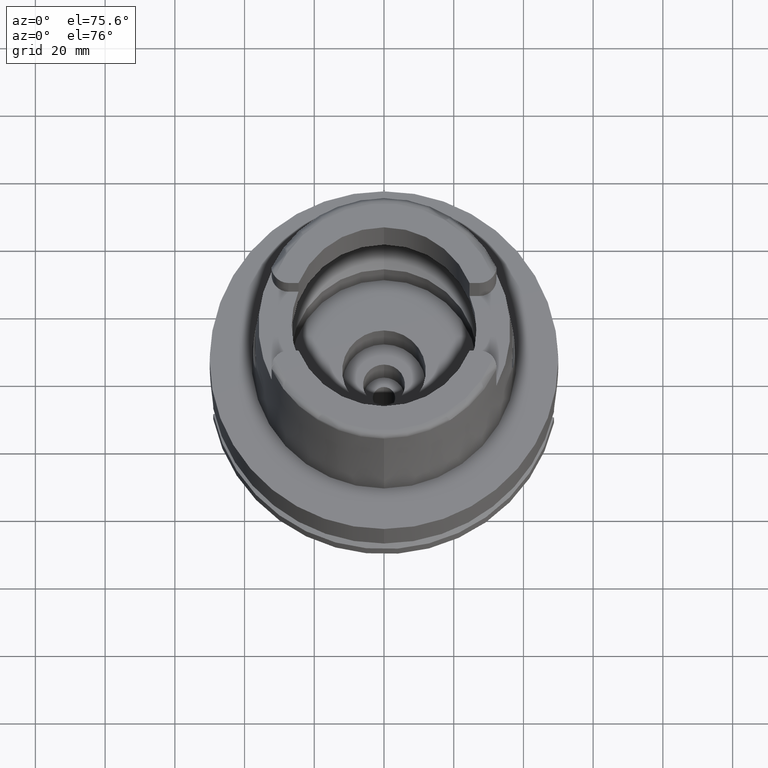
[diagram: clean part render]
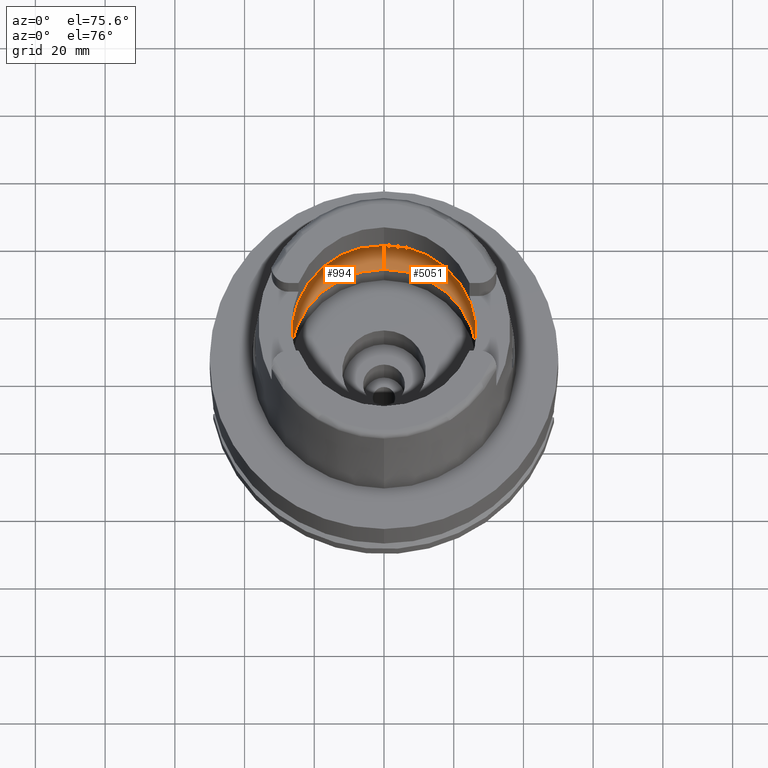
[diagram: same view with one multi-face feature highlighted, each face labeled with its STEP entity id]
A machine part, auxiliary view. The highlighted faces form ONE feature: a constant-radius fillet chain: 2 tangent blend faces with common blend radius 12 mm. The faces share edges in the B-rep.
Their STEP definitions:
[1] entity #994 (Torus):
#64 = DIRECTION ( 'NONE',  ( 0.0000000000000000000, 0.6166666666667049990, -0.7872243785746061429 ) ) ;
#209 = CARTESIAN_POINT ( 'NONE',  ( 0.0000000000000000000, 0.0000000000000000000, 9.496624327025999790 ) ) ;
#241 = CARTESIAN_POINT ( 'NONE',  ( -31.46287568614665986, 1.684656699916923683, 9.190219624986275093 ) ) ;
#360 = VERTEX_POINT ( 'NONE', #3854 ) ;
#527 = FACE_OUTER_BOUND ( 'NONE', #3154, .T. ) ;
#789 = DIRECTION ( 'NONE',  ( 0.0000000000000000000, -1.000000000000000000, 0.0000000000000000000 ) ) ;
#838 = DIRECTION ( 'NONE',  ( 0.0000000000000000000, 0.0000000000000000000, -1.000000000000000000 ) ) ;
#965 = AXIS2_PLACEMENT_3D ( 'NONE', #3676, #1107, #2020 ) ;
#994 = ADVANCED_FACE ( 'NONE', ( #527 ), #3195, .F. ) ;
#996 = VERTEX_POINT ( 'NONE', #3698 ) ;
#1056 = EDGE_CURVE ( 'NONE', #1976, #360, #3385, .T. ) ;
#1107 = DIRECTION ( 'NONE',  ( -1.000000000000000000, 0.0000000000000000000, 0.0000000000000000000 ) ) ;
#1123 = VERTEX_POINT ( 'NONE', #5472 ) ;
#1258 = ORIENTED_EDGE ( 'NONE', *, *, #3086, .F. ) ;
#1439 = ORIENTED_EDGE ( 'NONE', *, *, #3663, .F. ) ;
#1559 = CARTESIAN_POINT ( 'NONE',  ( 0.0000000000000000000, 0.0000000000000000000, 0.04993178413033000362 ) ) ;
#1632 = ORIENTED_EDGE ( 'NONE', *, *, #1056, .F. ) ;
#1815 = EDGE_CURVE ( 'NONE', #4267, #996, #1909, .T. ) ;
#1848 = CIRCLE ( 'NONE', #4173, 26.89999999999999858 ) ;
#1897 = CARTESIAN_POINT ( 'NONE',  ( -31.46287568614665986, -1.684656700029165899, 9.190219625035021878 ) ) ;
#1909 = B_SPLINE_CURVE_WITH_KNOTS ( 'NONE', 3,
 ( #2374, #4085, #241, #3670 ),
 .UNSPECIFIED., .F., .F.,
 ( 4, 4 ),
 ( 0.0000000000000000000, 1.000000000000000000 ),
 .UNSPECIFIED. ) ;
#1941 = DIRECTION ( 'NONE',  ( 0.0000000000000000000, 0.0000000000000000000, 1.000000000000000000 ) ) ;
#1976 = VERTEX_POINT ( 'NONE', #5588 ) ;
#2020 = DIRECTION ( 'NONE',  ( 0.0000000000000000000, -0.6166666666667049990, -0.7872243785746061429 ) ) ;
#2073 = CARTESIAN_POINT ( 'NONE',  ( 0.0000000000000000000, 31.50000000000000000, 9.496624327025999790 ) ) ;
#2076 = ORIENTED_EDGE ( 'NONE', *, *, #2528, .T. ) ;
#2217 = ORIENTED_EDGE ( 'NONE', *, *, #2298, .F. ) ;
#2284 = AXIS2_PLACEMENT_3D ( 'NONE', #3796, #838, #789 ) ;
#2298 = EDGE_CURVE ( 'NONE', #1123, #4267, #5220, .T. ) ;
#2350 = CARTESIAN_POINT ( 'NONE',  ( 0.0000000000000000000, 0.0000000000000000000, 9.496624327025999790 ) ) ;
#2362 = CIRCLE ( 'NONE', #2898, 11.99999999999999822 ) ;
#2374 = CARTESIAN_POINT ( 'NONE',  ( -31.48971910754000447, 0.0000000000000000000, 9.000000000000000000 ) ) ;
#2528 = EDGE_CURVE ( 'NONE', #3547, #5322, #2362, .T. ) ;
#2818 = DIRECTION ( 'NONE',  ( -0.9971171061384295209, 0.07587803796965221503, 0.0000000000000000000 ) ) ;
#2898 = AXIS2_PLACEMENT_3D ( 'NONE', #3717, #4742, #64 ) ;
#3086 = EDGE_CURVE ( 'NONE', #996, #5322, #4621, .T. ) ;
#3154 = EDGE_LOOP ( 'NONE', ( #1439, #1632, #3316, #2076, #1258, #3944, #2217 ) ) ;
#3163 = DIRECTION ( 'NONE',  ( 0.0000000000000000000, 0.0000000000000000000, 1.000000000000000000 ) ) ;
#3173 = AXIS2_PLACEMENT_3D ( 'NONE', #2350, #5006, #2818 ) ;
#3177 = CARTESIAN_POINT ( 'NONE',  ( -31.40918884336000616, -2.390158196043999705, 9.496624327025999790 ) ) ;
#3195 = TOROIDAL_SURFACE ( 'NONE', #3934, 19.50000000000000000, 12.00000000000000000 ) ;
#3316 = ORIENTED_EDGE ( 'NONE', *, *, #4067, .F. ) ;
#3385 = CIRCLE ( 'NONE', #965, 11.99999999999999822 ) ;
#3547 = VERTEX_POINT ( 'NONE', #4525 ) ;
#3663 = EDGE_CURVE ( 'NONE', #360, #1123, #4987, .T. ) ;
#3670 = CARTESIAN_POINT ( 'NONE',  ( -31.40918884336000616, 2.390158196043999705, 9.496624327025999790 ) ) ;
#3676 = CARTESIAN_POINT ( 'NONE',  ( 0.0000000000000000000, -19.50000000000000000, 9.496624327025999790 ) ) ;
#3687 = CARTESIAN_POINT ( 'NONE',  ( -31.48971910754000447, -0.8697454018008697885, 8.999999999999998224 ) ) ;
#3698 = CARTESIAN_POINT ( 'NONE',  ( -31.40918884336000616, 2.390158196043999705, 9.496624327025999790 ) ) ;
#3717 = CARTESIAN_POINT ( 'NONE',  ( 0.0000000000000000000, 19.50000000000000000, 9.496624327025999790 ) ) ;
#3796 = CARTESIAN_POINT ( 'NONE',  ( 0.0000000000000000000, 0.0000000000000000000, 9.496624327025999790 ) ) ;
#3854 = CARTESIAN_POINT ( 'NONE',  ( 0.0000000000000000000, -31.50000000000000000, 9.496624327025999790 ) ) ;
#3934 = AXIS2_PLACEMENT_3D ( 'NONE', #209, #1941, #4950 ) ;
#3944 = ORIENTED_EDGE ( 'NONE', *, *, #1815, .F. ) ;
#4045 = CARTESIAN_POINT ( 'NONE',  ( -31.48971910754000447, 0.0000000000000000000, 9.000000000000000000 ) ) ;
#4067 = EDGE_CURVE ( 'NONE', #3547, #1976, #1848, .T. ) ;
#4085 = CARTESIAN_POINT ( 'NONE',  ( -31.48971910754000447, 0.8697454016785111097, 9.000000000000001776 ) ) ;
#4173 = AXIS2_PLACEMENT_3D ( 'NONE', #1559, #3163, #4491 ) ;
#4267 = VERTEX_POINT ( 'NONE', #4605 ) ;
#4491 = DIRECTION ( 'NONE',  ( 0.0000000000000000000, 1.000000000000000000, 0.0000000000000000000 ) ) ;
#4525 = CARTESIAN_POINT ( 'NONE',  ( 0.0000000000000000000, 26.89999999999999858, 0.04993178413034000257 ) ) ;
#4605 = CARTESIAN_POINT ( 'NONE',  ( -31.48971910754000447, 0.0000000000000000000, 9.000000000000000000 ) ) ;
#4621 = CIRCLE ( 'NONE', #3173, 31.49999999999998934 ) ;
#4742 = DIRECTION ( 'NONE',  ( 1.000000000000000000, 0.0000000000000000000, 0.0000000000000000000 ) ) ;
#4950 = DIRECTION ( 'NONE',  ( 0.0000000000000000000, 1.000000000000000000, 0.0000000000000000000 ) ) ;
#4987 = CIRCLE ( 'NONE', #2284, 31.50000000000000000 ) ;
#5006 = DIRECTION ( 'NONE',  ( 0.0000000000000000000, 0.0000000000000000000, -1.000000000000000000 ) ) ;
#5220 = B_SPLINE_CURVE_WITH_KNOTS ( 'NONE', 3,
 ( #3177, #1897, #3687, #4045 ),
 .UNSPECIFIED., .F., .F.,
 ( 4, 4 ),
 ( 0.0000000000000000000, 1.000000000000000000 ),
 .UNSPECIFIED. ) ;
#5322 = VERTEX_POINT ( 'NONE', #2073 ) ;
#5472 = CARTESIAN_POINT ( 'NONE',  ( -31.40918884336000616, -2.390158196043999705, 9.496624327025999790 ) ) ;
#5588 = CARTESIAN_POINT ( 'NONE',  ( 0.0000000000000000000, -26.89999999999999858, 0.04993178413033000362 ) ) ;
[2] entity #5051 (Torus):
#49 = AXIS2_PLACEMENT_3D ( 'NONE', #910, #942, #3511 ) ;
#64 = DIRECTION ( 'NONE',  ( 0.0000000000000000000, 0.6166666666667049990, -0.7872243785746061429 ) ) ;
#88 = VERTEX_POINT ( 'NONE', #2819 ) ;
#146 = CIRCLE ( 'NONE', #1405, 31.49999999999998934 ) ;
#260 = EDGE_CURVE ( 'NONE', #88, #360, #146, .T. ) ;
#267 = CARTESIAN_POINT ( 'NONE',  ( 31.40918884336000616, 2.390158196043999705, 9.496624327025999790 ) ) ;
#360 = VERTEX_POINT ( 'NONE', #3854 ) ;
#605 = CARTESIAN_POINT ( 'NONE',  ( 31.46287568614665986, 1.684656700008886121, 9.190219625026216477 ) ) ;
#616 = ORIENTED_EDGE ( 'NONE', *, *, #4942, .F. ) ;
#787 = B_SPLINE_CURVE_WITH_KNOTS ( 'NONE', 3,
 ( #3443, #3505, #2619, #2596 ),
 .UNSPECIFIED., .F., .F.,
 ( 4, 4 ),
 ( 0.0000000000000000000, 1.000000000000000000 ),
 .UNSPECIFIED. ) ;
#910 = CARTESIAN_POINT ( 'NONE',  ( 0.0000000000000000000, 0.0000000000000000000, 9.496624327025999790 ) ) ;
#942 = DIRECTION ( 'NONE',  ( 0.0000000000000000000, 0.0000000000000000000, -1.000000000000000000 ) ) ;
#965 = AXIS2_PLACEMENT_3D ( 'NONE', #3676, #1107, #2020 ) ;
#1056 = EDGE_CURVE ( 'NONE', #1976, #360, #3385, .T. ) ;
#1107 = DIRECTION ( 'NONE',  ( -1.000000000000000000, 0.0000000000000000000, 0.0000000000000000000 ) ) ;
#1172 = ORIENTED_EDGE ( 'NONE', *, *, #1056, .T. ) ;
#1201 = VERTEX_POINT ( 'NONE', #4976 ) ;
#1220 = CARTESIAN_POINT ( 'NONE',  ( 0.0000000000000000000, 0.0000000000000000000, 0.04993178413033000362 ) ) ;
#1311 = CARTESIAN_POINT ( 'NONE',  ( 0.0000000000000000000, 0.0000000000000000000, 9.496624327025999790 ) ) ;
#1405 = AXIS2_PLACEMENT_3D ( 'NONE', #1311, #2495, #2518 ) ;
#1484 = ORIENTED_EDGE ( 'NONE', *, *, #5572, .F. ) ;
#1566 = CIRCLE ( 'NONE', #49, 31.50000000000000000 ) ;
#1591 = DIRECTION ( 'NONE',  ( 0.0000000000000000000, -1.000000000000000000, 0.0000000000000000000 ) ) ;
#1723 = EDGE_CURVE ( 'NONE', #2469, #1201, #5353, .T. ) ;
#1743 = DIRECTION ( 'NONE',  ( 0.0000000000000000000, 0.0000000000000000000, 1.000000000000000000 ) ) ;
#1863 = EDGE_CURVE ( 'NONE', #1976, #3547, #3976, .T. ) ;
#1976 = VERTEX_POINT ( 'NONE', #5588 ) ;
#1987 = CARTESIAN_POINT ( 'NONE',  ( 31.48971910753999026, 0.8697454017787721314, 9.000000000000001776 ) ) ;
#2020 = DIRECTION ( 'NONE',  ( 0.0000000000000000000, -0.6166666666667049990, -0.7872243785746061429 ) ) ;
#2073 = CARTESIAN_POINT ( 'NONE',  ( 0.0000000000000000000, 31.50000000000000000, 9.496624327025999790 ) ) ;
#2362 = CIRCLE ( 'NONE', #2898, 11.99999999999999822 ) ;
#2469 = VERTEX_POINT ( 'NONE', #3015 ) ;
#2474 = EDGE_LOOP ( 'NONE', ( #4819, #1484, #3531, #4236, #1172, #2897, #616 ) ) ;
#2495 = DIRECTION ( 'NONE',  ( 0.0000000000000000000, 0.0000000000000000000, -1.000000000000000000 ) ) ;
#2518 = DIRECTION ( 'NONE',  ( 0.9971171061384295209, -0.07587803796965221503, 0.0000000000000000000 ) ) ;
#2528 = EDGE_CURVE ( 'NONE', #3547, #5322, #2362, .T. ) ;
#2577 = DIRECTION ( 'NONE',  ( 0.0000000000000000000, 0.0000000000000000000, 1.000000000000000000 ) ) ;
#2596 = CARTESIAN_POINT ( 'NONE',  ( 31.40918884336000616, -2.390158196043999705, 9.496624327025999790 ) ) ;
#2619 = CARTESIAN_POINT ( 'NONE',  ( 31.46287568614665986, -1.684656699965325632, 9.190219625007294724 ) ) ;
#2819 = CARTESIAN_POINT ( 'NONE',  ( 31.40918884336000616, -2.390158196043999705, 9.496624327025999790 ) ) ;
#2897 = ORIENTED_EDGE ( 'NONE', *, *, #260, .F. ) ;
#2898 = AXIS2_PLACEMENT_3D ( 'NONE', #3717, #4742, #64 ) ;
#3015 = CARTESIAN_POINT ( 'NONE',  ( 31.40918884336000616, 2.390158196043999705, 9.496624327025999790 ) ) ;
#3035 = DIRECTION ( 'NONE',  ( 0.0000000000000000000, 1.000000000000000000, 0.0000000000000000000 ) ) ;
#3385 = CIRCLE ( 'NONE', #965, 11.99999999999999822 ) ;
#3443 = CARTESIAN_POINT ( 'NONE',  ( 31.48971910754000447, 0.0000000000000000000, 9.000000000000000000 ) ) ;
#3461 = TOROIDAL_SURFACE ( 'NONE', #5463, 19.50000000000000000, 12.00000000000000000 ) ;
#3505 = CARTESIAN_POINT ( 'NONE',  ( 31.48971910753999026, -0.8697454017312684638, 8.999999999999998224 ) ) ;
#3511 = DIRECTION ( 'NONE',  ( 0.0000000000000000000, 1.000000000000000000, 0.0000000000000000000 ) ) ;
#3531 = ORIENTED_EDGE ( 'NONE', *, *, #2528, .F. ) ;
#3547 = VERTEX_POINT ( 'NONE', #4525 ) ;
#3676 = CARTESIAN_POINT ( 'NONE',  ( 0.0000000000000000000, -19.50000000000000000, 9.496624327025999790 ) ) ;
#3717 = CARTESIAN_POINT ( 'NONE',  ( 0.0000000000000000000, 19.50000000000000000, 9.496624327025999790 ) ) ;
#3854 = CARTESIAN_POINT ( 'NONE',  ( 0.0000000000000000000, -31.50000000000000000, 9.496624327025999790 ) ) ;
#3976 = CIRCLE ( 'NONE', #4706, 26.89999999999999858 ) ;
#4127 = FACE_OUTER_BOUND ( 'NONE', #2474, .T. ) ;
#4236 = ORIENTED_EDGE ( 'NONE', *, *, #1863, .F. ) ;
#4525 = CARTESIAN_POINT ( 'NONE',  ( 0.0000000000000000000, 26.89999999999999858, 0.04993178413034000257 ) ) ;
#4706 = AXIS2_PLACEMENT_3D ( 'NONE', #1220, #2577, #1591 ) ;
#4727 = CARTESIAN_POINT ( 'NONE',  ( 0.0000000000000000000, 0.0000000000000000000, 9.496624327025999790 ) ) ;
#4742 = DIRECTION ( 'NONE',  ( 1.000000000000000000, 0.0000000000000000000, 0.0000000000000000000 ) ) ;
#4819 = ORIENTED_EDGE ( 'NONE', *, *, #1723, .F. ) ;
#4942 = EDGE_CURVE ( 'NONE', #1201, #88, #787, .T. ) ;
#4976 = CARTESIAN_POINT ( 'NONE',  ( 31.48971910754000447, 0.0000000000000000000, 9.000000000000000000 ) ) ;
#5051 = ADVANCED_FACE ( 'NONE', ( #4127 ), #3461, .F. ) ;
#5322 = VERTEX_POINT ( 'NONE', #2073 ) ;
#5353 = B_SPLINE_CURVE_WITH_KNOTS ( 'NONE', 3,
 ( #267, #605, #1987, #5385 ),
 .UNSPECIFIED., .F., .F.,
 ( 4, 4 ),
 ( 0.0000000000000000000, 1.000000000000000000 ),
 .UNSPECIFIED. ) ;
#5385 = CARTESIAN_POINT ( 'NONE',  ( 31.48971910754000447, 0.0000000000000000000, 9.000000000000000000 ) ) ;
#5463 = AXIS2_PLACEMENT_3D ( 'NONE', #4727, #1743, #3035 ) ;
#5572 = EDGE_CURVE ( 'NONE', #5322, #2469, #1566, .T. ) ;
#5588 = CARTESIAN_POINT ( 'NONE',  ( 0.0000000000000000000, -26.89999999999999858, 0.04993178413033000362 ) ) ;